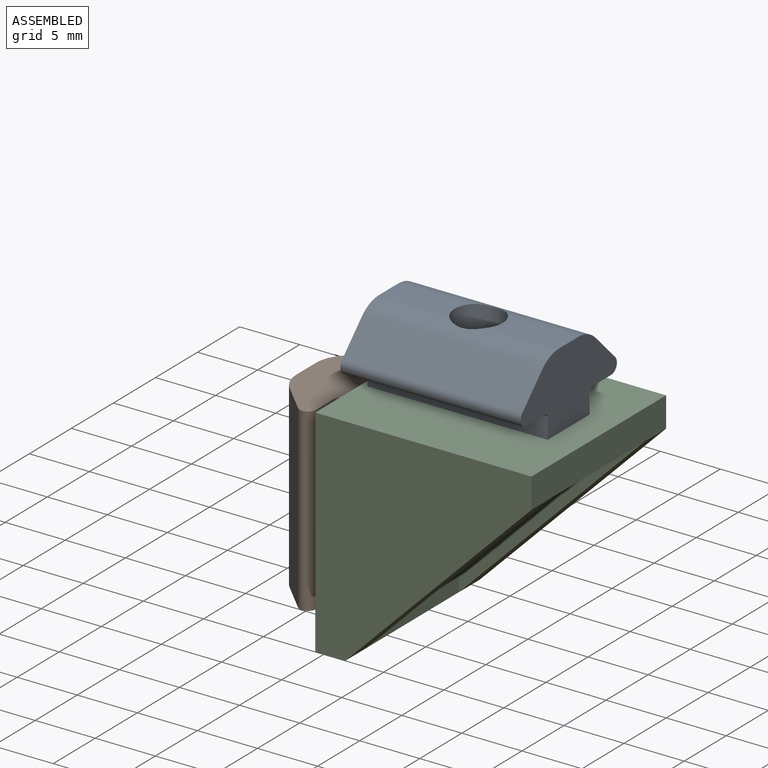
[diagram: assembled view]
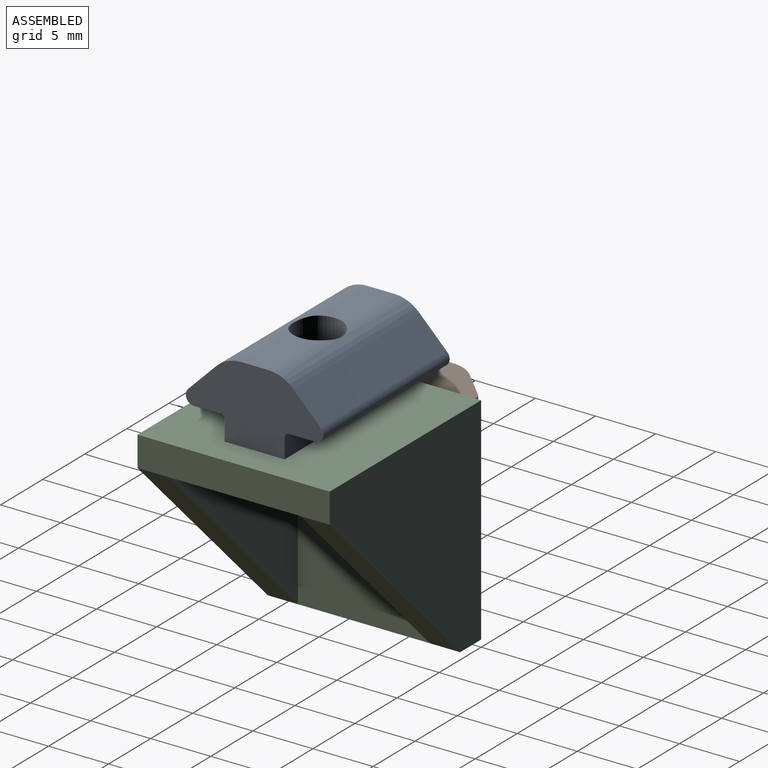
[diagram: assembled view, second angle]
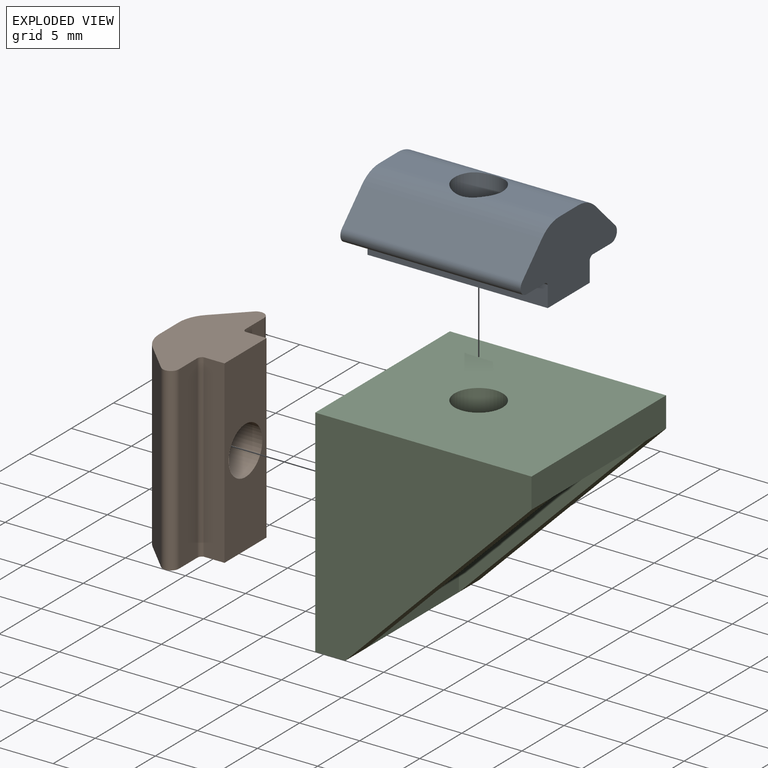
[diagram: exploded view]
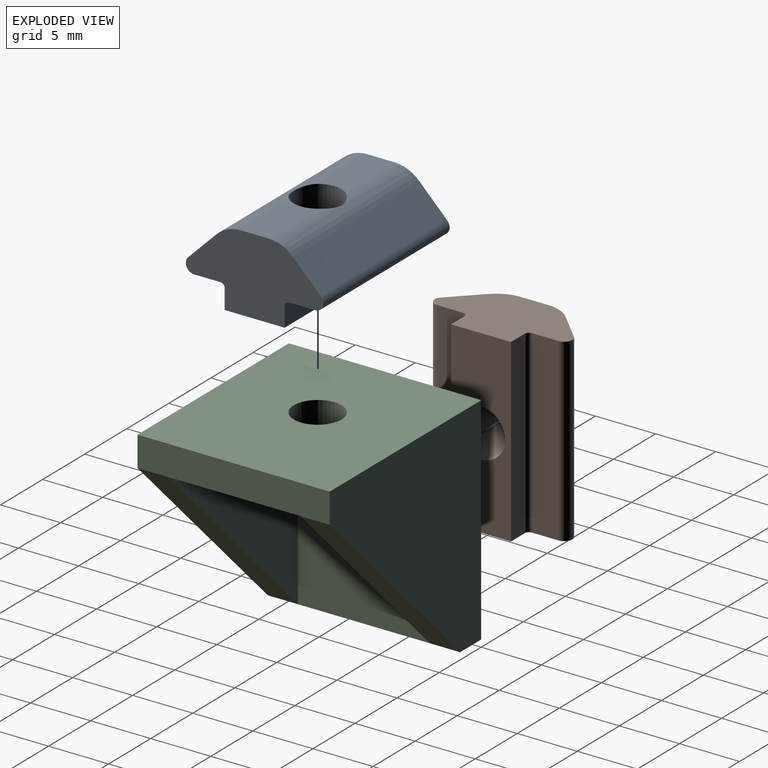
[diagram: exploded view, second angle]
ASSEMBLY  parts=3 mates=2
PART A: 20 faces, bbox 11.4x15x6.4 mm
  f0: cylinder r=2.9mm len=15mm, axis (0,1,0), area 32.1mm2, adj f2,f3,f7,f17,f18,f19
  f1: cylinder r=2.9mm len=15mm, axis (0,1,0), area 32.1mm2, adj f4,f5,f8,f17,f18,f19
  f2: plane 5.85x1.13mm, normal (0,0,-1), area 6.4mm2, adj f0,f4,f18,f19
  f3: plane 5.85x1.13mm, normal (0,0,-1), area 6.4mm2, adj f0,f5,f17,f19
  f4: plane 5.85x1.13mm, normal (0,0,-1), area 6.4mm2, adj f1,f2,f18,f19
  f5: plane 5.85x1.13mm, normal (0,0,-1), area 6.4mm2, adj f1,f3,f17,f19
  f6: cylinder r=0.68mm len=15mm, axis (0,1,0), area 24mm2, adj f7,f16,f17,f18
  f7: plane 15x2.34mm, normal (-0.71,0,-0.71), area 49.7mm2, adj f0,f6,f17,f18
  f8: plane 15x2.34mm, normal (0.71,0,-0.71), area 49.7mm2, adj f1,f9,f17,f18
  f9: cylinder r=0.68mm len=15mm, axis (0,1,0), area 24mm2, adj f8,f10,f17,f18
  f10: plane 15x2.17mm, normal (0,0,1), area 32.6mm2, adj f9,f11,f17,f18
  f11: cylinder r=0.4mm len=15mm, axis (0,1,0), area 7.3mm2, adj f10,f12,f17,f18
  f12: plane 15x1.74mm, normal (1,0,0), area 26.1mm2, adj f11,f13,f17,f18
  f13: plane 15x4.99mm, normal (0,0,1), area 62.3mm2, adj f12,f14,f17,f18,f19
  f14: plane 15x1.74mm, normal (-1,0,0), area 26.1mm2, adj f13,f15,f17,f18
  f15: cylinder r=0.4mm len=15mm, axis (0,1,0), area 7.3mm2, adj f14,f16,f17,f18
  f16: plane 15x2.17mm, normal (0,0,1), area 32.6mm2, adj f6,f15,f17,f18
  f17: plane 11.45x6.35mm, normal (0,-1,0), area 47.8mm2, adj f0,f1,f3,f5,f6,f7,f8,f9
  f18: plane 11.45x6.35mm, normal (0,1,0), area 47.8mm2, adj f0,f1,f2,f4,f6,f7,f8,f9
  f19: cylinder r=2mm len=6.35mm, axis (0,0,1), area 79.3mm2, adj f0,f1,f2,f3,f4,f5,f13
PART B: same geometry as A
PART C: 14 faces, bbox 18x16x18 mm
  f0: plane 15.5x11mm, normal (0,0,1), area 157.9mm2, adj f1,f3,f9,f11,f13
  f1: plane 15.5x11mm, normal (1,0,0), area 157.9mm2, adj f0,f4,f9,f11,f12
  f2: plane 18x16mm, normal (0,0,-1), area 275.4mm2, adj f3,f5,f6,f7,f13
  f3: plane 16x2.5mm, normal (1,0,0), area 40mm2, adj f0,f2,f6,f7,f8,f10
  f4: plane 16x2.5mm, normal (0,0,1), area 40mm2, adj f1,f5,f6,f7,f8,f10
  f5: plane 18x16mm, normal (-1,0,0), area 275.4mm2, adj f2,f4,f6,f7,f12
  f6: plane 18x18mm, normal (0,-1,0), area 203.9mm2, adj f2,f3,f4,f5,f8
  f7: plane 18x18mm, normal (0,1,0), area 203.9mm2, adj f2,f3,f4,f5,f10
  f8: plane 15.5x15.5mm, normal (0.71,0,0.71), area 54.8mm2, adj f3,f4,f6,f9
  f9: plane 15.5x15.5mm, normal (0,1,0), area 120.1mm2, adj f0,f1,f8
  f10: plane 15.5x15.5mm, normal (0.71,0,0.71), area 54.8mm2, adj f3,f4,f7,f11
  f11: plane 15.5x15.5mm, normal (0,-1,0), area 120.1mm2, adj f0,f1,f10
  f12: cylinder r=2mm len=4mm, axis (-1,0,0), area 31.4mm2, adj f1,f5
  f13: cylinder r=2mm len=4mm, axis (0,0,-1), area 31.4mm2, adj f0,f2
PLACE A rot(axis=(-0.71,-0.71,0),180deg) t=(15.5,-8,10.1)mm
PLACE B rot(axis=(0.58,0.58,0.58),120deg) t=(-10.1,-8,-1.45)mm
PLACE C rot(axis=(1,0,0),180deg) t=(0,-16,0)mm
MATE fastened A.f19 <-> C.f13  axis (0,0,-1) through (8,-8,0)mm
MATE fastened B.f19 <-> C.f5  axis (1,0,0) through (0,-8,-8.95)mm
